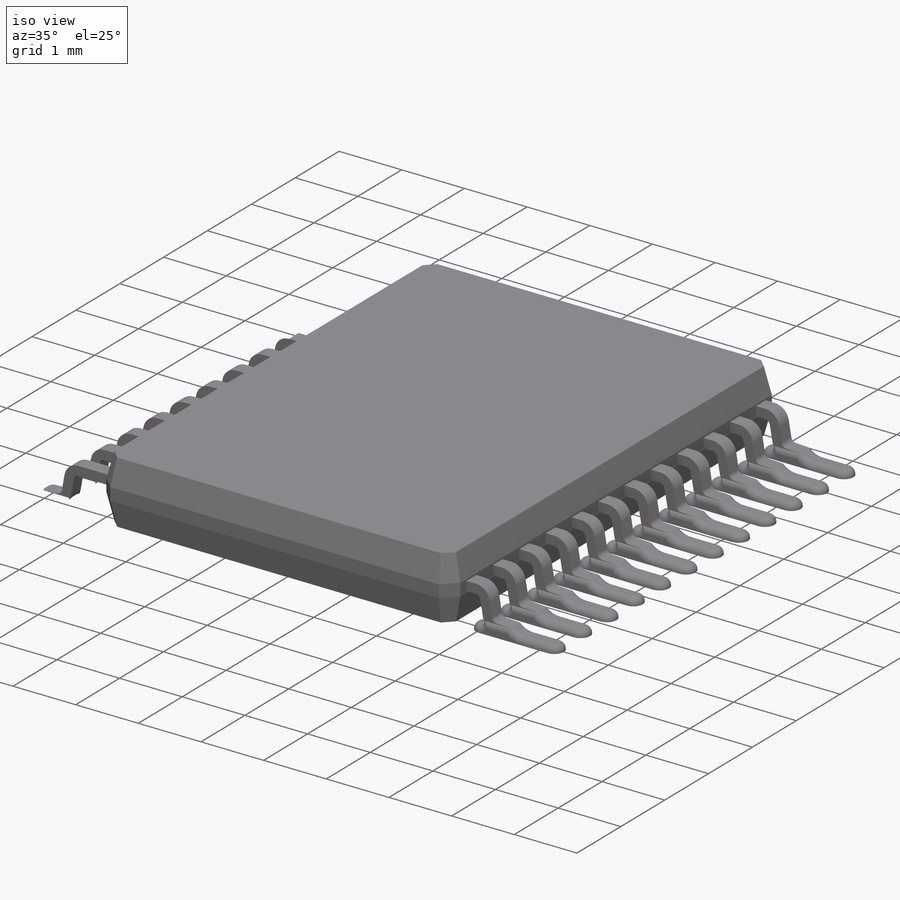
[diagram: iso view]
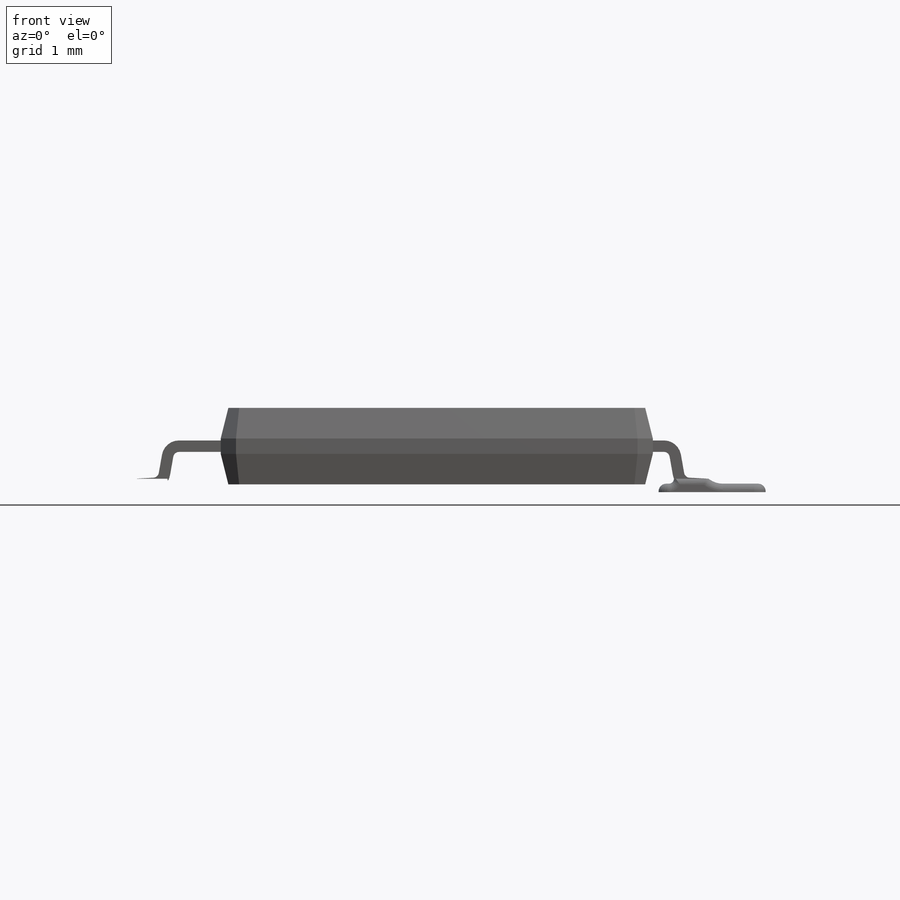
[diagram: front view]
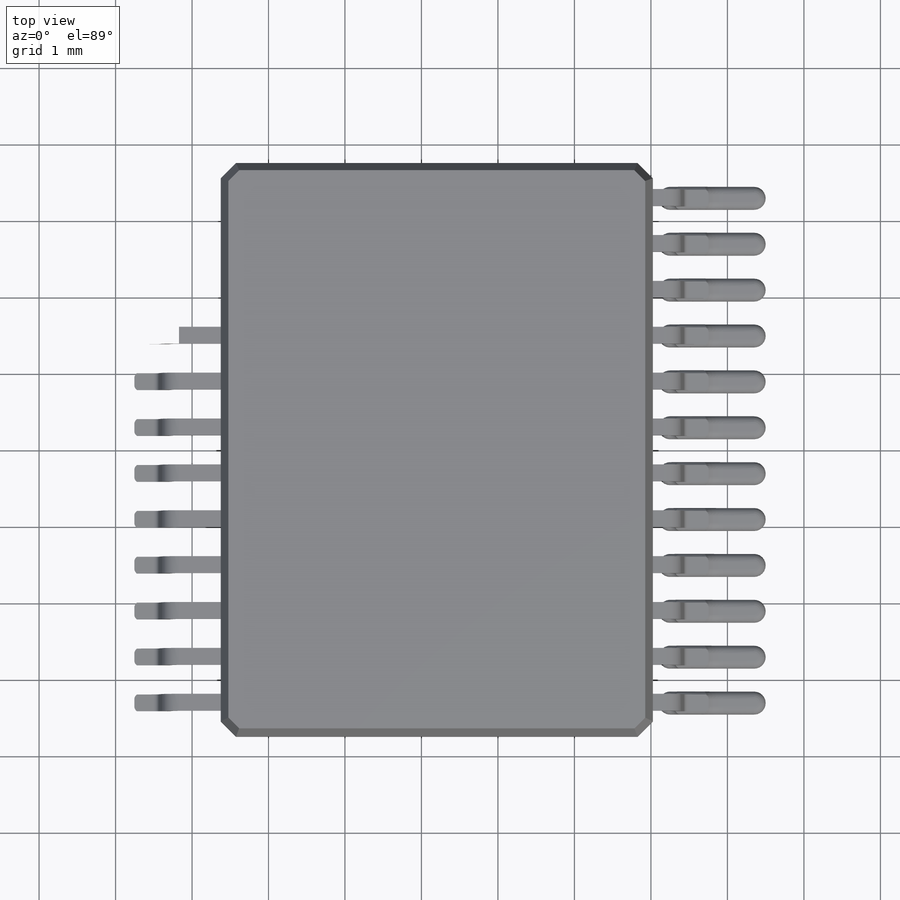
[diagram: top view]
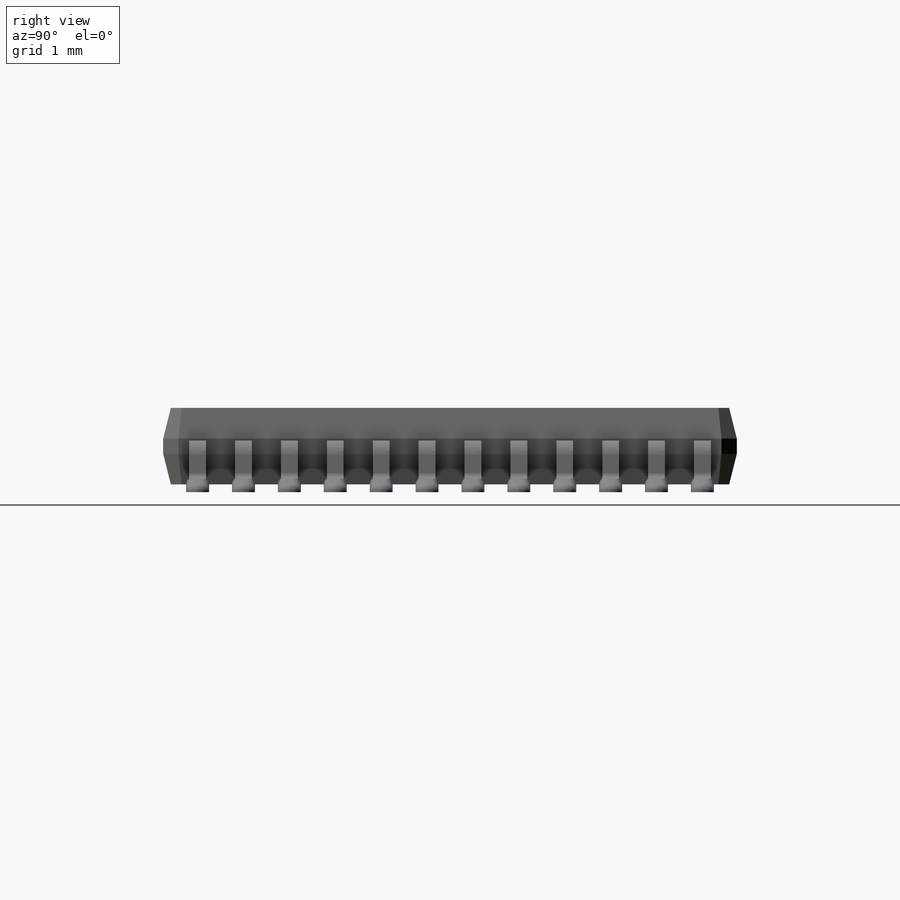
[diagram: right view]
SOLIDWORKS PART (.sldprt)
format: sldprt  version: not decoded by parser v0  size: 2,802,176 bytes
history: native  units: mm
features: plane x5, sketch x3, fillet x3, extrude x2, chamfer x2, pattern_linear x2, material x1, mirror x1 (+13 scaffold rows collapsed)
feature tree (32):
  scaffold x13  (default folders/planes/origin — collapsed)
  material  "Matériau <non spécifié>"
  plane  "Plane1"
  sketch  "Sketch1"  dims[D1=3.75mm D2=7.5mm D3=2.625mm D4=5.25mm]
  extrude  "Boss-Extrude1"  Depth=1mm
  chamfer  "Chamfer1"  Distance=0.4mm
  chamfer  "Chamfer2"  Distance=0.1mm
  plane  "Plane8"  Offset=3.3mm
  sketch  "Sketch2"  dims[c1.D5=0.15mm c1.D1=4.5mm c1.D2=7.7mm c2.D2=3.0deg c2.D3=0.25mm c2.D4=0.5mm c2.D6=1.0mm c2.D1=4.5mm c2.D7=~0.266579mm c3.D7=80.0deg c3.D1=3.75mm c4.D1=0.22mm c4.D5=0.15mm c4.D6=1.0mm c4.D7=0.0001mm]
  plane  "Plane10"  Offset=0.1mm
  sketch  "Sketch6"  dims[D4=0.3mm D1=1.4mm D2=4.5mm D3=0.11mm]
  extrude  "Boss-Extrude3"  Depth=0.3mm
  fillet  "Fillet5"  Radius=0.15mm
  fillet  "Fillet6"  Radius=0.1mm
  fillet  "Fillet10"  Radius=0.1mm
  plane  "Plane3"
  plane  "Plane4"
  pattern_linear  "LPattern1"  Count1=12 Count2=1 Spacing1=0.6mm Spacing2=0.95mm
  mirror  "Mirror2"
  pattern_linear  "Axis3"  [2 undecoded]
decode coverage: 11 of 13 modeling features carry decoded parameters
note: ~ marks probable driven/reference dimensions
note: 2 parameter values undecoded
note: suppression state not decoded; provenance and decode notes live in map.json
